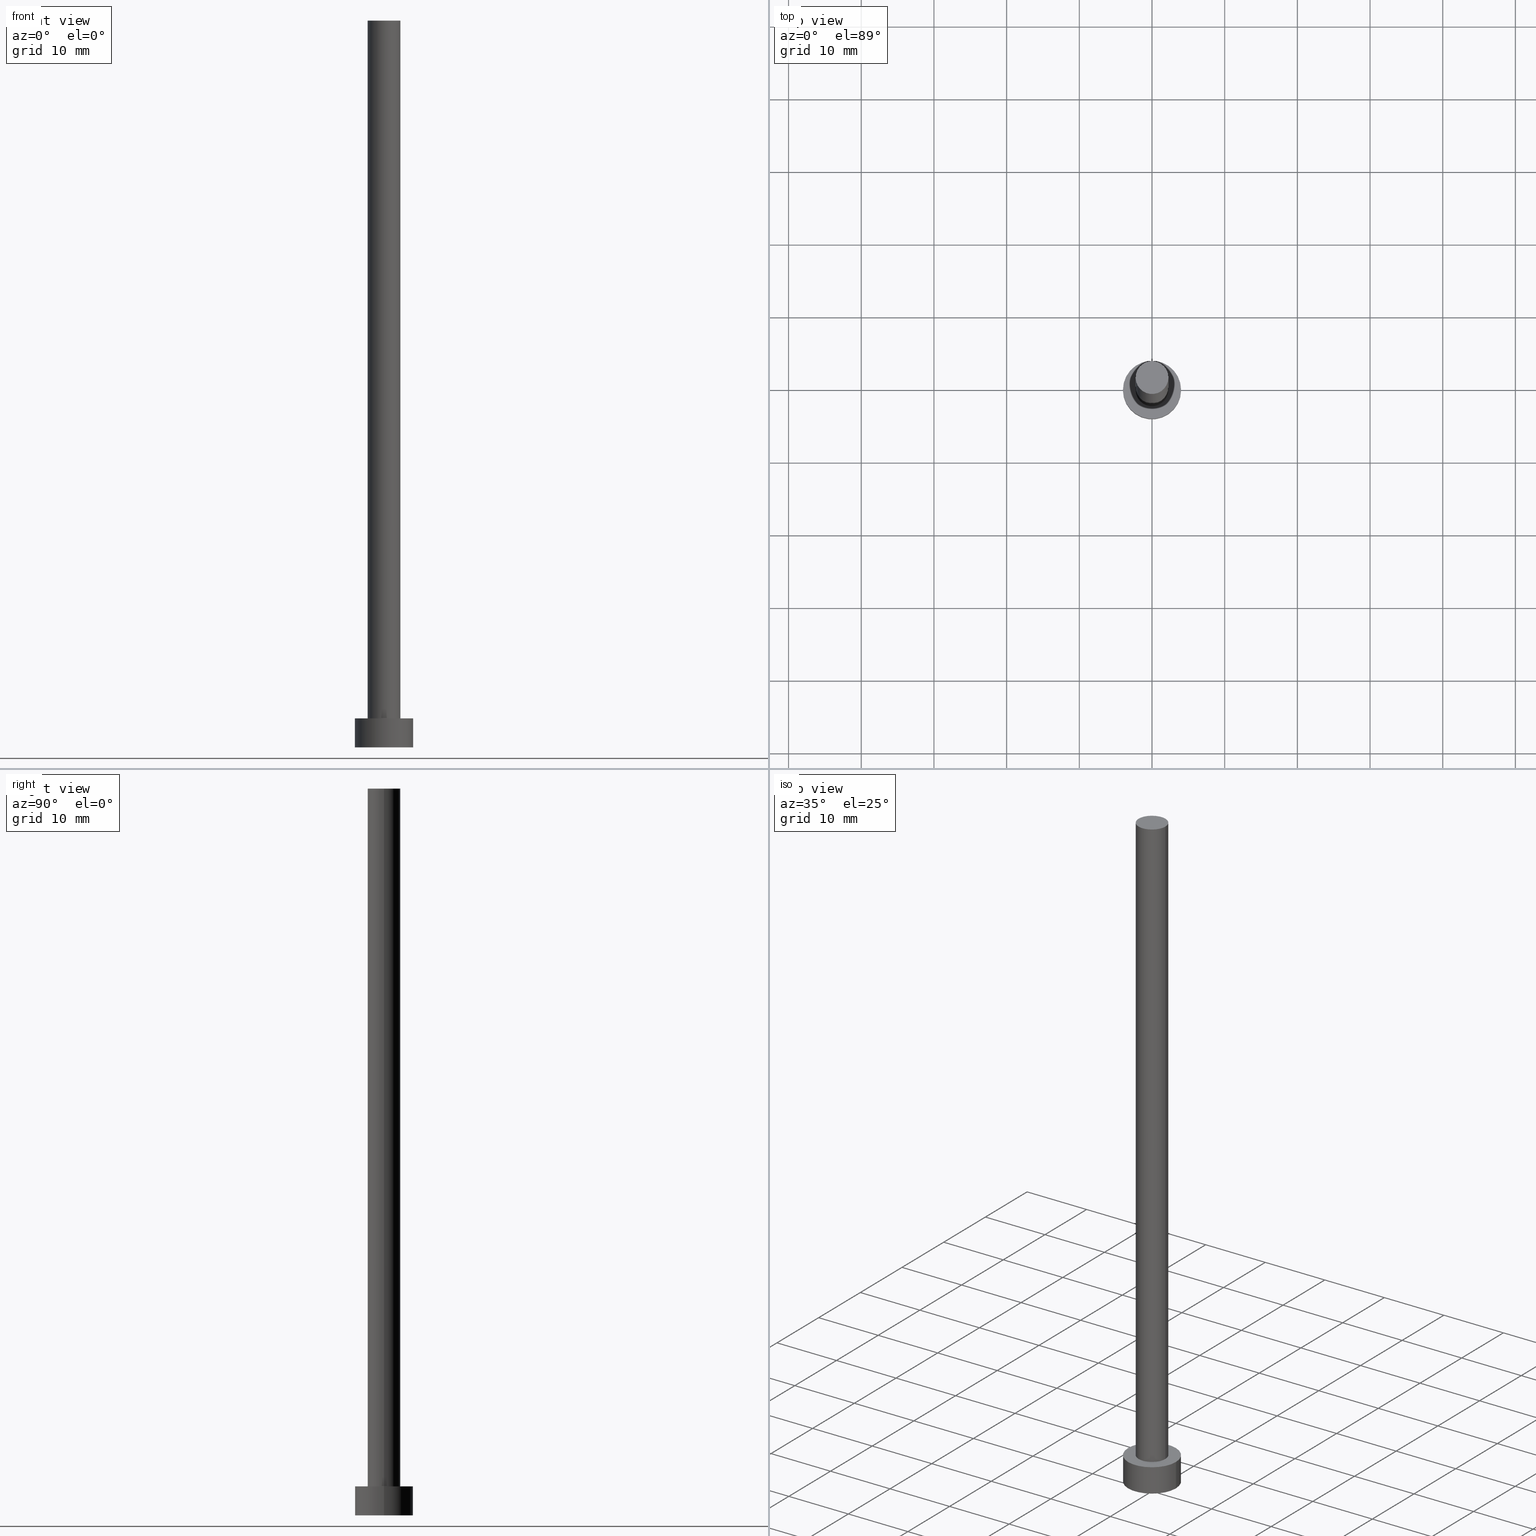
[diagram: canonical four-view strip — front | top / right | iso, engineering-drawing reading convention]
A machine part, canonical four-view strip (front | top / right | iso — engineering-drawing reading convention). The complete STEP part file that produces these views, byte-faithful:
ISO-10303-21;
HEADER;
FILE_DESCRIPTION (( 'STEP AP203' ),
    '1' );
FILE_NAME ('3a41.STEP',
    '2023-02-13T16:21:15',
    ( '' ),
    ( '' ),
    'SwSTEP 2.0',
    'SolidWorks 2019',
    '' );
FILE_SCHEMA (( 'CONFIG_CONTROL_DESIGN' ));
ENDSEC;

DATA;
#1 = APPLICATION_PROTOCOL_DEFINITION ( 'international standard', 'config_control_design', 1994, #110 ) ;
#2 = ORIENTED_EDGE ( 'NONE', *, *, #140, .F. ) ;
#3 = PERSON_AND_ORGANIZATION_ROLE ( 'creator' ) ;
#4 = CARTESIAN_POINT ( 'NONE',  ( 0.000000000000000000, 0.000000000000000000, 4.000000000000000000 ) ) ;
#5 = ORIENTED_EDGE ( 'NONE', *, *, #35, .F. ) ;
#6 = PERSON_AND_ORGANIZATION ( #171, #229 ) ;
#7 = DIRECTION ( 'NONE',  ( 1.000000000000000000, 0.000000000000000000, 0.000000000000000000 ) ) ;
#8 = APPLICATION_CONTEXT ( 'configuration controlled 3d designs of mechanical parts and assemblies' ) ;
#9 = VERTEX_POINT ( 'NONE', #186 ) ;
#10 = APPROVAL_ROLE ( '' ) ;
#11 = CC_DESIGN_PERSON_AND_ORGANIZATION_ASSIGNMENT ( #67, #3, ( #88 ) ) ;
#12 = VECTOR ( 'NONE', #70, 1000.000000000000000 ) ;
#13 = PRODUCT_DEFINITION_FORMATION_WITH_SPECIFIED_SOURCE ( 'LIBOVOLN�', '', #21, .NOT_KNOWN. ) ;
#14 = DIRECTION ( 'NONE',  ( -1.000000000000000000, 0.000000000000000000, 0.000000000000000000 ) ) ;
#15 = CLOSED_SHELL ( 'NONE', ( #233, #114, #185, #223, #173, #83, #107 ) ) ;
#16 = AXIS2_PLACEMENT_3D ( 'NONE', #250, #80, #142 ) ;
#17 = EDGE_CURVE ( 'NONE', #9, #228, #34, .T. ) ;
#18 = DIRECTION ( 'NONE',  ( 0.000000000000000000, 0.000000000000000000, 1.000000000000000000 ) ) ;
#19 = FACE_OUTER_BOUND ( 'NONE', #130, .T. ) ;
#20 = VECTOR ( 'NONE', #33, 1000.000000000000000 ) ;
#21 = PRODUCT ( '3a41', '3a41', '', ( #61 ) ) ;
#22 = APPROVAL_ROLE ( '' ) ;
#23 = VERTEX_POINT ( 'NONE', #145 ) ;
#24 = PERSON_AND_ORGANIZATION ( #171, #229 ) ;
#25 = ORIENTED_EDGE ( 'NONE', *, *, #162, .T. ) ;
#26 = APPROVAL_ROLE ( '' ) ;
#27 = ORIENTED_EDGE ( 'NONE', *, *, #53, .T. ) ;
#28 = PERSON_AND_ORGANIZATION_ROLE ( 'creator' ) ;
#29 = DIRECTION ( 'NONE',  ( -0.000000000000000000, -0.000000000000000000, -1.000000000000000000 ) ) ;
#30 = VERTEX_POINT ( 'NONE', #87 ) ;
#31 = CARTESIAN_POINT ( 'NONE',  ( 0.000000000000000000, 0.000000000000000000, 4.000000000000000000 ) ) ;
#32 = CC_DESIGN_DATE_AND_TIME_ASSIGNMENT ( #65, #104, ( #88 ) ) ;
#33 = DIRECTION ( 'NONE',  ( -0.000000000000000000, -0.000000000000000000, -1.000000000000000000 ) ) ;
#34 = CIRCLE ( 'NONE', #234, 2.250000000000000000 ) ;
#35 = EDGE_CURVE ( 'NONE', #246, #30, #163, .T. ) ;
#36 = DIRECTION ( 'NONE',  ( 1.000000000000000000, 0.000000000000000000, 0.000000000000000000 ) ) ;
#37 = DIRECTION ( 'NONE',  ( -1.000000000000000000, 0.000000000000000000, 0.000000000000000000 ) ) ;
#38 = DIRECTION ( 'NONE',  ( 0.000000000000000000, 0.000000000000000000, 1.000000000000000000 ) ) ;
#39 = FACE_OUTER_BOUND ( 'NONE', #154, .T. ) ;
#40 = PERSON_AND_ORGANIZATION ( #171, #229 ) ;
#41 = CC_DESIGN_SECURITY_CLASSIFICATION ( #120, ( #13 ) ) ;
#42 = APPLICATION_PROTOCOL_DEFINITION ( 'international standard', 'config_control_design', 1994, #8 ) ;
#43 = AXIS2_PLACEMENT_3D ( 'NONE', #183, #55, #161 ) ;
#44 = ORIENTED_EDGE ( 'NONE', *, *, #63, .F. ) ;
#45 = APPROVAL_STATUS ( 'not_yet_approved' ) ;
#46 = PRODUCT_RELATED_PRODUCT_CATEGORY ( 'detail', '', ( #21 ) ) ;
#47 = ORIENTED_EDGE ( 'NONE', *, *, #17, .T. ) ;
#48 = ORIENTED_EDGE ( 'NONE', *, *, #162, .F. ) ;
#49 = CARTESIAN_POINT ( 'NONE',  ( 0.000000000000000000, 0.000000000000000000, 100.0000000000000000 ) ) ;
#50 = CARTESIAN_POINT ( 'NONE',  ( 0.000000000000000000, 0.000000000000000000, 100.0000000000000000 ) ) ;
#51 = CARTESIAN_POINT ( 'NONE',  ( 0.000000000000000000, 0.000000000000000000, 100.0000000000000000 ) ) ;
#52 = CYLINDRICAL_SURFACE ( 'NONE', #101, 4.000000000000000000 ) ;
#53 = EDGE_CURVE ( 'NONE', #9, #30, #90, .T. ) ;
#54 = CIRCLE ( 'NONE', #89, 4.000000000000000000 ) ;
#55 = DIRECTION ( 'NONE',  ( 0.000000000000000000, 0.000000000000000000, 1.000000000000000000 ) ) ;
#56 = COORDINATED_UNIVERSAL_TIME_OFFSET ( 1, 0, .AHEAD. ) ;
#57 = AXIS2_PLACEMENT_3D ( 'NONE', #4, #133, #64 ) ;
#58 = CARTESIAN_POINT ( 'NONE',  ( 2.250000000000000000, 2.755455298081544285E-16, 4.000000000000000000 ) ) ;
#59 =( NAMED_UNIT ( * ) PLANE_ANGLE_UNIT ( ) SI_UNIT ( $, .RADIAN. ) );
#60 = DIRECTION ( 'NONE',  ( 1.000000000000000000, 0.000000000000000000, -0.000000000000000000 ) ) ;
#61 = MECHANICAL_CONTEXT ( 'NONE', #110, 'mechanical' ) ;
#62 = CALENDAR_DATE ( 2023, 13, 2 ) ;
#63 = EDGE_CURVE ( 'NONE', #129, #203, #253, .T. ) ;
#64 = DIRECTION ( 'NONE',  ( 1.000000000000000000, 0.000000000000000000, 0.000000000000000000 ) ) ;
#65 = DATE_AND_TIME ( #166, #180 ) ;
#66 = ORIENTED_EDGE ( 'NONE', *, *, #97, .T. ) ;
#67 = PERSON_AND_ORGANIZATION ( #171, #229 ) ;
#68 = ORIENTED_EDGE ( 'NONE', *, *, #35, .T. ) ;
#69 = APPROVAL ( #190, 'NEUR�EN�' ) ;
#70 = DIRECTION ( 'NONE',  ( -0.000000000000000000, -0.000000000000000000, -1.000000000000000000 ) ) ;
#71 = PERSON_AND_ORGANIZATION ( #171, #229 ) ;
#72 = ORIENTED_EDGE ( 'NONE', *, *, #196, .F. ) ;
#73 = AXIS2_PLACEMENT_3D ( 'NONE', #251, #136, #194 ) ;
#74 = CARTESIAN_POINT ( 'NONE',  ( 0.000000000000000000, 0.000000000000000000, 4.000000000000000000 ) ) ;
#75 = LINE ( 'NONE', #214, #198 ) ;
#76 = EDGE_CURVE ( 'NONE', #129, #23, #208, .T. ) ;
#77 = CARTESIAN_POINT ( 'NONE',  ( 4.000000000000000000, 4.898587196589412829E-16, 0.000000000000000000 ) ) ;
#78 = APPROVAL_PERSON_ORGANIZATION ( #207, #69, #10 ) ;
#79 = AXIS2_PLACEMENT_3D ( 'NONE', #49, #29, #165 ) ;
#80 = DIRECTION ( 'NONE',  ( 0.000000000000000000, 0.000000000000000000, 1.000000000000000000 ) ) ;
#81 = LOCAL_TIME ( 17, 21, 15.00000000000000000, #147 ) ;
#82 = LINE ( 'NONE', #98, #20 ) ;
#83 = ADVANCED_FACE ( 'NONE', ( #226 ), #240, .T. ) ;
#84 = ORIENTED_EDGE ( 'NONE', *, *, #153, .T. ) ;
#85 = CALENDAR_DATE ( 2023, 13, 2 ) ;
#86 = DIRECTION ( 'NONE',  ( -0.000000000000000000, -0.000000000000000000, -1.000000000000000000 ) ) ;
#87 = CARTESIAN_POINT ( 'NONE',  ( -2.250000000000000000, 0.000000000000000000, 4.000000000000000000 ) ) ;
#88 = PRODUCT_DEFINITION ( 'NEZN�M�', '', #13, #123 ) ;
#89 = AXIS2_PLACEMENT_3D ( 'NONE', #215, #100, #141 ) ;
#90 = LINE ( 'NONE', #169, #125 ) ;
#91 = PERSON_AND_ORGANIZATION_ROLE ( 'design_supplier' ) ;
#92 = APPROVAL_DATE_TIME ( #146, #69 ) ;
#93 = EDGE_LOOP ( 'NONE', ( #2, #5 ) ) ;
#94 = COORDINATED_UNIVERSAL_TIME_OFFSET ( 1, 0, .AHEAD. ) ;
#95 = PLANE ( 'NONE',  #220 ) ;
#96 =( GEOMETRIC_REPRESENTATION_CONTEXT ( 3 ) GLOBAL_UNCERTAINTY_ASSIGNED_CONTEXT ( ( #217 ) ) GLOBAL_UNIT_ASSIGNED_CONTEXT ( ( #134, #59, #252 ) ) REPRESENTATION_CONTEXT ( 'NONE', 'WORKASPACE' ) );
#97 = EDGE_CURVE ( 'NONE', #202, #23, #158, .T. ) ;
#98 = CARTESIAN_POINT ( 'NONE',  ( 2.250000000000000000, 2.755455298081544285E-16, 100.0000000000000000 ) ) ;
#99 = PLANE ( 'NONE',  #197 ) ;
#100 = DIRECTION ( 'NONE',  ( 0.000000000000000000, 0.000000000000000000, 1.000000000000000000 ) ) ;
#101 = AXIS2_PLACEMENT_3D ( 'NONE', #31, #211, #37 ) ;
#102 = CARTESIAN_POINT ( 'NONE',  ( 2.250000000000000000, 2.755455298081544285E-16, 100.0000000000000000 ) ) ;
#103 = PRODUCT_DEFINITION_SHAPE ( 'NONE', 'NONE',  #88 ) ;
#104 = DATE_TIME_ROLE ( 'creation_date' ) ;
#105 = EDGE_LOOP ( 'NONE', ( #72, #84, #68, #187 ) ) ;
#106 = DATE_TIME_ROLE ( 'classification_date' ) ;
#107 = ADVANCED_FACE ( 'NONE', ( #39 ), #99, .T. ) ;
#108 = ORIENTED_EDGE ( 'NONE', *, *, #242, .F. ) ;
#109 = APPROVAL_DATE_TIME ( #239, #149 ) ;
#110 = APPLICATION_CONTEXT ( 'configuration controlled 3d designs of mechanical parts and assemblies' ) ;
#111 = ORIENTED_EDGE ( 'NONE', *, *, #97, .F. ) ;
#112 = EDGE_LOOP ( 'NONE', ( #48, #44, #148, #201 ) ) ;
#113 = CARTESIAN_POINT ( 'NONE',  ( -4.000000000000000000, 0.000000000000000000, 4.000000000000000000 ) ) ;
#114 = ADVANCED_FACE ( 'NONE', ( #119 ), #52, .T. ) ;
#115 = DIRECTION ( 'NONE',  ( -0.000000000000000000, -0.000000000000000000, -1.000000000000000000 ) ) ;
#116 = PLANE ( 'NONE',  #16 ) ;
#117 = LOCAL_TIME ( 17, 21, 15.00000000000000000, #222 ) ;
#118 = CARTESIAN_POINT ( 'NONE',  ( 0.000000000000000000, 0.000000000000000000, 4.000000000000000000 ) ) ;
#119 = FACE_OUTER_BOUND ( 'NONE', #128, .T. ) ;
#120 = SECURITY_CLASSIFICATION ( '', '', #172 ) ;
#121 = ADVANCED_BREP_SHAPE_REPRESENTATION ( '3a41', ( #244, #139 ), #96 ) ;
#122 = PERSON_AND_ORGANIZATION ( #171, #229 ) ;
#123 = DESIGN_CONTEXT ( 'detailed design', #8, 'design' ) ;
#124 = COORDINATED_UNIVERSAL_TIME_OFFSET ( 1, 0, .AHEAD. ) ;
#125 = VECTOR ( 'NONE', #86, 1000.000000000000000 ) ;
#126 = ORIENTED_EDGE ( 'NONE', *, *, #17, .F. ) ;
#127 = AXIS2_PLACEMENT_3D ( 'NONE', #51, #115, #14 ) ;
#128 = EDGE_LOOP ( 'NONE', ( #108, #25, #66, #189 ) ) ;
#129 = VERTEX_POINT ( 'NONE', #113 ) ;
#130 = EDGE_LOOP ( 'NONE', ( #174, #111 ) ) ;
#131 = DATE_AND_TIME ( #227, #81 ) ;
#132 = AXIS2_PLACEMENT_3D ( 'NONE', #118, #230, #175 ) ;
#133 = DIRECTION ( 'NONE',  ( 0.000000000000000000, 0.000000000000000000, 1.000000000000000000 ) ) ;
#134 =( LENGTH_UNIT ( ) NAMED_UNIT ( * ) SI_UNIT ( .MILLI., .METRE. ) );
#135 = AXIS2_PLACEMENT_3D ( 'NONE', #74, #18, #209 ) ;
#136 = DIRECTION ( 'NONE',  ( 0.000000000000000000, 0.000000000000000000, 1.000000000000000000 ) ) ;
#137 = CC_DESIGN_PERSON_AND_ORGANIZATION_ASSIGNMENT ( #71, #152, ( #120 ) ) ;
#138 = DIRECTION ( 'NONE',  ( 1.000000000000000000, 0.000000000000000000, 0.000000000000000000 ) ) ;
#139 = AXIS2_PLACEMENT_3D ( 'NONE', #237, #38, #36 ) ;
#140 = EDGE_CURVE ( 'NONE', #30, #246, #179, .T. ) ;
#141 = DIRECTION ( 'NONE',  ( 1.000000000000000000, 0.000000000000000000, 0.000000000000000000 ) ) ;
#142 = DIRECTION ( 'NONE',  ( 1.000000000000000000, 0.000000000000000000, -0.000000000000000000 ) ) ;
#143 = CC_DESIGN_DATE_AND_TIME_ASSIGNMENT ( #131, #106, ( #120 ) ) ;
#144 = DATE_AND_TIME ( #225, #192 ) ;
#145 = CARTESIAN_POINT ( 'NONE',  ( -4.000000000000000000, 0.000000000000000000, 0.000000000000000000 ) ) ;
#146 = DATE_AND_TIME ( #62, #212 ) ;
#147 = COORDINATED_UNIVERSAL_TIME_OFFSET ( 1, 0, .AHEAD. ) ;
#148 = ORIENTED_EDGE ( 'NONE', *, *, #76, .T. ) ;
#149 = APPROVAL ( #45, 'NEUR�EN�' ) ;
#150 = ORIENTED_EDGE ( 'NONE', *, *, #140, .T. ) ;
#151 = EDGE_LOOP ( 'NONE', ( #238, #224 ) ) ;
#152 = PERSON_AND_ORGANIZATION_ROLE ( 'classification_officer' ) ;
#153 = EDGE_CURVE ( 'NONE', #228, #246, #82, .T. ) ;
#154 = EDGE_LOOP ( 'NONE', ( #47, #221 ) ) ;
#155 = CC_DESIGN_APPROVAL ( #69, ( #120 ) ) ;
#156 = CYLINDRICAL_SURFACE ( 'NONE', #132, 4.000000000000000000 ) ;
#157 = CARTESIAN_POINT ( 'NONE',  ( 0.000000000000000000, 0.000000000000000000, 0.000000000000000000 ) ) ;
#158 = CIRCLE ( 'NONE', #43, 4.000000000000000000 ) ;
#159 = CARTESIAN_POINT ( 'NONE',  ( 0.000000000000000000, 0.000000000000000000, 4.000000000000000000 ) ) ;
#160 = CARTESIAN_POINT ( 'NONE',  ( 4.000000000000000000, 4.898587196589412829E-16, 4.000000000000000000 ) ) ;
#161 = DIRECTION ( 'NONE',  ( 1.000000000000000000, 0.000000000000000000, 0.000000000000000000 ) ) ;
#162 = EDGE_CURVE ( 'NONE', #203, #202, #75, .T. ) ;
#163 = CIRCLE ( 'NONE', #57, 2.250000000000000000 ) ;
#164 = AXIS2_PLACEMENT_3D ( 'NONE', #159, #232, #138 ) ;
#165 = DIRECTION ( 'NONE',  ( -1.000000000000000000, 0.000000000000000000, 0.000000000000000000 ) ) ;
#166 = CALENDAR_DATE ( 2023, 13, 2 ) ;
#167 = CC_DESIGN_PERSON_AND_ORGANIZATION_ASSIGNMENT ( #24, #28, ( #13 ) ) ;
#168 = DIRECTION ( 'NONE',  ( 0.000000000000000000, 0.000000000000000000, 1.000000000000000000 ) ) ;
#169 = CARTESIAN_POINT ( 'NONE',  ( -2.250000000000000000, 0.000000000000000000, 100.0000000000000000 ) ) ;
#170 = CARTESIAN_POINT ( 'NONE',  ( 0.000000000000000000, 0.000000000000000000, 4.000000000000000000 ) ) ;
#171 = PERSON ( 'NEUR�EN�', 'NEUR�EN�', 'NEUR�EN�', ('NEUR�EN�'), ('NEUR�EN�'), ('NEUR�EN�') ) ;
#172 = SECURITY_CLASSIFICATION_LEVEL ( 'unclassified' ) ;
#173 = ADVANCED_FACE ( 'NONE', ( #19 ), #95, .F. ) ;
#174 = ORIENTED_EDGE ( 'NONE', *, *, #247, .F. ) ;
#175 = DIRECTION ( 'NONE',  ( -1.000000000000000000, 0.000000000000000000, 0.000000000000000000 ) ) ;
#176 = DIRECTION ( 'NONE',  ( 0.000000000000000000, 0.000000000000000000, 1.000000000000000000 ) ) ;
#177 = CYLINDRICAL_SURFACE ( 'NONE', #127, 2.250000000000000000 ) ;
#178 = DIRECTION ( 'NONE',  ( -0.000000000000000000, -0.000000000000000000, -1.000000000000000000 ) ) ;
#179 = CIRCLE ( 'NONE', #135, 2.250000000000000000 ) ;
#180 = LOCAL_TIME ( 17, 21, 15.00000000000000000, #124 ) ;
#181 = APPROVAL ( #200, 'NEUR�EN�' ) ;
#182 = CIRCLE ( 'NONE', #164, 4.000000000000000000 ) ;
#183 = CARTESIAN_POINT ( 'NONE',  ( 0.000000000000000000, 0.000000000000000000, 0.000000000000000000 ) ) ;
#184 = PERSON_AND_ORGANIZATION ( #171, #229 ) ;
#185 = ADVANCED_FACE ( 'NONE', ( #231 ), #156, .T. ) ;
#186 = CARTESIAN_POINT ( 'NONE',  ( -2.250000000000000000, 0.000000000000000000, 100.0000000000000000 ) ) ;
#187 = ORIENTED_EDGE ( 'NONE', *, *, #53, .F. ) ;
#188 = DIRECTION ( 'NONE',  ( 0.000000000000000000, 0.000000000000000000, 1.000000000000000000 ) ) ;
#189 = ORIENTED_EDGE ( 'NONE', *, *, #76, .F. ) ;
#190 = APPROVAL_STATUS ( 'not_yet_approved' ) ;
#191 = FACE_OUTER_BOUND ( 'NONE', #105, .T. ) ;
#192 = LOCAL_TIME ( 17, 21, 15.00000000000000000, #56 ) ;
#193 = FACE_BOUND ( 'NONE', #93, .T. ) ;
#194 = DIRECTION ( 'NONE',  ( 1.000000000000000000, 0.000000000000000000, 0.000000000000000000 ) ) ;
#195 = CARTESIAN_POINT ( 'NONE',  ( 0.000000000000000000, 0.000000000000000000, 100.0000000000000000 ) ) ;
#196 = EDGE_CURVE ( 'NONE', #228, #9, #206, .T. ) ;
#197 = AXIS2_PLACEMENT_3D ( 'NONE', #195, #248, #60 ) ;
#198 = VECTOR ( 'NONE', #178, 1000.000000000000000 ) ;
#199 = CC_DESIGN_APPROVAL ( #181, ( #88 ) ) ;
#200 = APPROVAL_STATUS ( 'not_yet_approved' ) ;
#201 = ORIENTED_EDGE ( 'NONE', *, *, #247, .T. ) ;
#202 = VERTEX_POINT ( 'NONE', #77 ) ;
#203 = VERTEX_POINT ( 'NONE', #160 ) ;
#204 = APPROVAL_DATE_TIME ( #144, #181 ) ;
#205 = ORIENTED_EDGE ( 'NONE', *, *, #153, .F. ) ;
#206 = CIRCLE ( 'NONE', #73, 2.250000000000000000 ) ;
#207 = PERSON_AND_ORGANIZATION ( #171, #229 ) ;
#208 = LINE ( 'NONE', #245, #12 ) ;
#209 = DIRECTION ( 'NONE',  ( 1.000000000000000000, 0.000000000000000000, 0.000000000000000000 ) ) ;
#210 = CC_DESIGN_PERSON_AND_ORGANIZATION_ASSIGNMENT ( #40, #216, ( #21 ) ) ;
#211 = DIRECTION ( 'NONE',  ( -0.000000000000000000, -0.000000000000000000, -1.000000000000000000 ) ) ;
#212 = LOCAL_TIME ( 17, 21, 15.00000000000000000, #94 ) ;
#213 = APPROVAL_PERSON_ORGANIZATION ( #122, #181, #22 ) ;
#214 = CARTESIAN_POINT ( 'NONE',  ( 4.000000000000000000, 4.898587196589412829E-16, 4.000000000000000000 ) ) ;
#215 = CARTESIAN_POINT ( 'NONE',  ( 0.000000000000000000, 0.000000000000000000, 0.000000000000000000 ) ) ;
#216 = PERSON_AND_ORGANIZATION_ROLE ( 'design_owner' ) ;
#217 = UNCERTAINTY_MEASURE_WITH_UNIT (LENGTH_MEASURE( 1.000000000000000082E-05 ), #134, 'distance_accuracy_value', 'NONE');
#218 = DIRECTION ( 'NONE',  ( 1.000000000000000000, 0.000000000000000000, 0.000000000000000000 ) ) ;
#219 = SHAPE_DEFINITION_REPRESENTATION ( #103, #121 ) ;
#220 = AXIS2_PLACEMENT_3D ( 'NONE', #157, #176, #236 ) ;
#221 = ORIENTED_EDGE ( 'NONE', *, *, #196, .T. ) ;
#222 = COORDINATED_UNIVERSAL_TIME_OFFSET ( 1, 0, .AHEAD. ) ;
#223 = ADVANCED_FACE ( 'NONE', ( #193, #255 ), #116, .T. ) ;
#224 = ORIENTED_EDGE ( 'NONE', *, *, #242, .T. ) ;
#225 = CALENDAR_DATE ( 2023, 13, 2 ) ;
#226 = FACE_OUTER_BOUND ( 'NONE', #243, .T. ) ;
#227 = CALENDAR_DATE ( 2023, 13, 2 ) ;
#228 = VERTEX_POINT ( 'NONE', #102 ) ;
#229 = ORGANIZATION ( 'NEUR�EN�', 'NEUR�EN�', '' ) ;
#230 = DIRECTION ( 'NONE',  ( -0.000000000000000000, -0.000000000000000000, -1.000000000000000000 ) ) ;
#231 = FACE_OUTER_BOUND ( 'NONE', #112, .T. ) ;
#232 = DIRECTION ( 'NONE',  ( 0.000000000000000000, 0.000000000000000000, 1.000000000000000000 ) ) ;
#233 = ADVANCED_FACE ( 'NONE', ( #191 ), #177, .T. ) ;
#234 = AXIS2_PLACEMENT_3D ( 'NONE', #50, #188, #7 ) ;
#235 = CC_DESIGN_PERSON_AND_ORGANIZATION_ASSIGNMENT ( #6, #91, ( #13 ) ) ;
#236 = DIRECTION ( 'NONE',  ( 1.000000000000000000, 0.000000000000000000, -0.000000000000000000 ) ) ;
#237 = CARTESIAN_POINT ( 'NONE',  ( 0.000000000000000000, 0.000000000000000000, 0.000000000000000000 ) ) ;
#238 = ORIENTED_EDGE ( 'NONE', *, *, #63, .T. ) ;
#239 = DATE_AND_TIME ( #85, #117 ) ;
#240 = CYLINDRICAL_SURFACE ( 'NONE', #79, 2.250000000000000000 ) ;
#241 = AXIS2_PLACEMENT_3D ( 'NONE', #170, #168, #218 ) ;
#242 = EDGE_CURVE ( 'NONE', #203, #129, #182, .T. ) ;
#243 = EDGE_LOOP ( 'NONE', ( #205, #126, #27, #150 ) ) ;
#244 = MANIFOLD_SOLID_BREP ( 'P�idat vysunut�m3', #15 ) ;
#245 = CARTESIAN_POINT ( 'NONE',  ( -4.000000000000000000, 0.000000000000000000, 4.000000000000000000 ) ) ;
#246 = VERTEX_POINT ( 'NONE', #58 ) ;
#247 = EDGE_CURVE ( 'NONE', #23, #202, #54, .T. ) ;
#248 = DIRECTION ( 'NONE',  ( 0.000000000000000000, 0.000000000000000000, 1.000000000000000000 ) ) ;
#249 = CC_DESIGN_APPROVAL ( #149, ( #13 ) ) ;
#250 = CARTESIAN_POINT ( 'NONE',  ( 0.000000000000000000, 0.000000000000000000, 4.000000000000000000 ) ) ;
#251 = CARTESIAN_POINT ( 'NONE',  ( 0.000000000000000000, 0.000000000000000000, 100.0000000000000000 ) ) ;
#252 =( NAMED_UNIT ( * ) SI_UNIT ( $, .STERADIAN. ) SOLID_ANGLE_UNIT ( ) );
#253 = CIRCLE ( 'NONE', #241, 4.000000000000000000 ) ;
#254 = APPROVAL_PERSON_ORGANIZATION ( #184, #149, #26 ) ;
#255 = FACE_OUTER_BOUND ( 'NONE', #151, .T. ) ;
ENDSEC;
END-ISO-10303-21;
